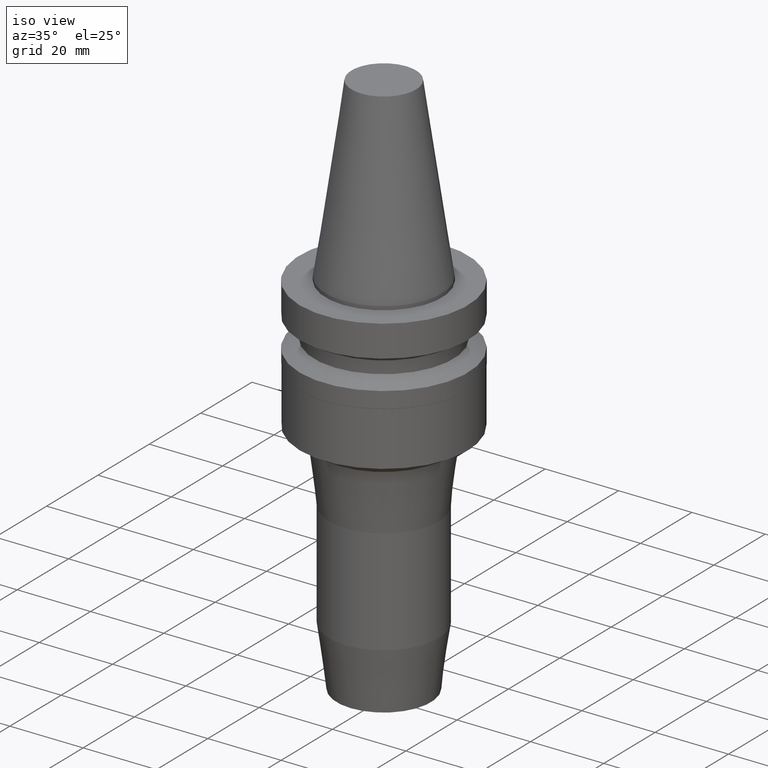
[diagram: clean part render]
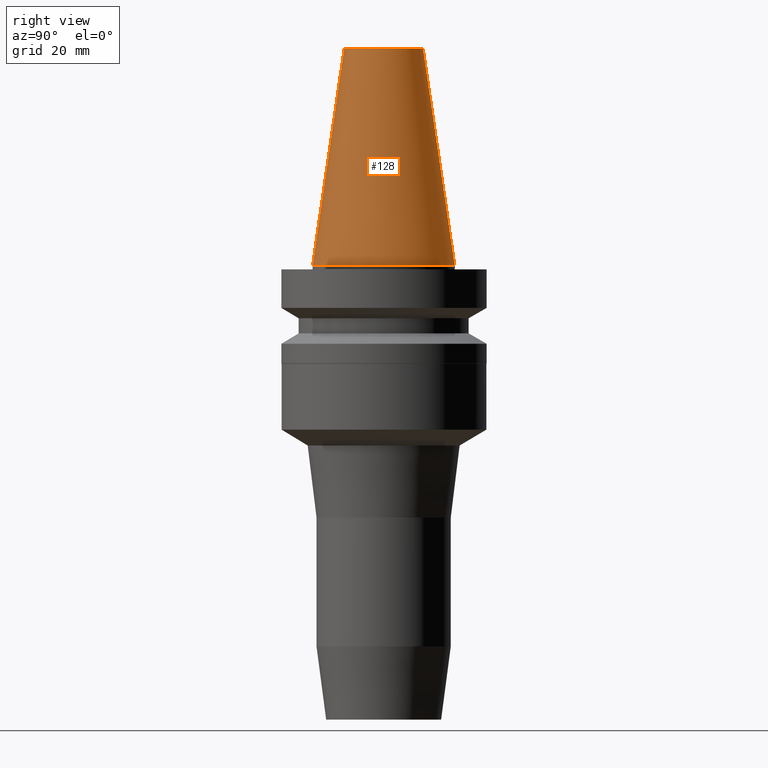
[diagram: tour spotlight — one face highlighted and labeled with its STEP entity id]
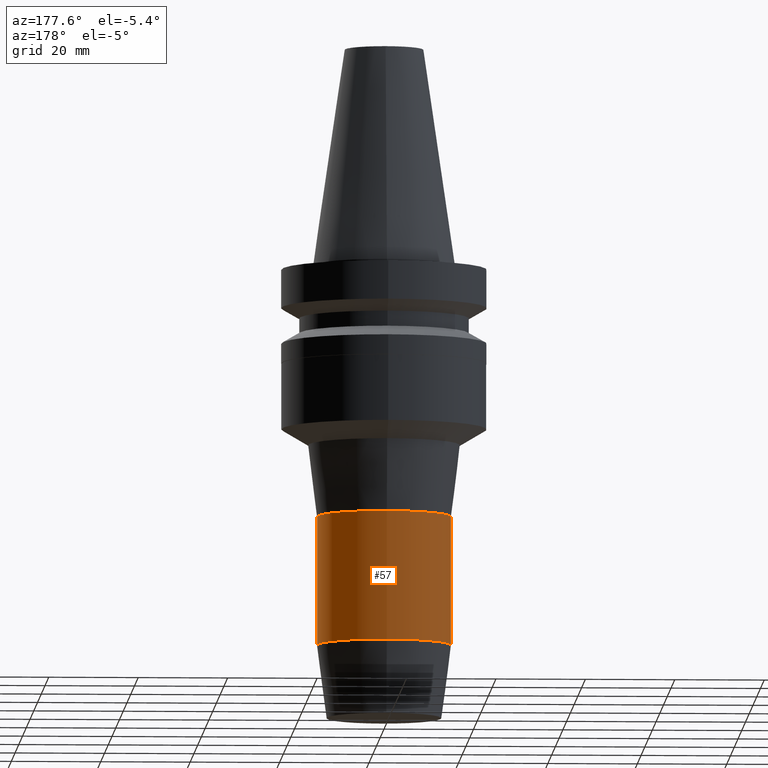
[diagram: tour spotlight — one face highlighted and labeled with its STEP entity id]
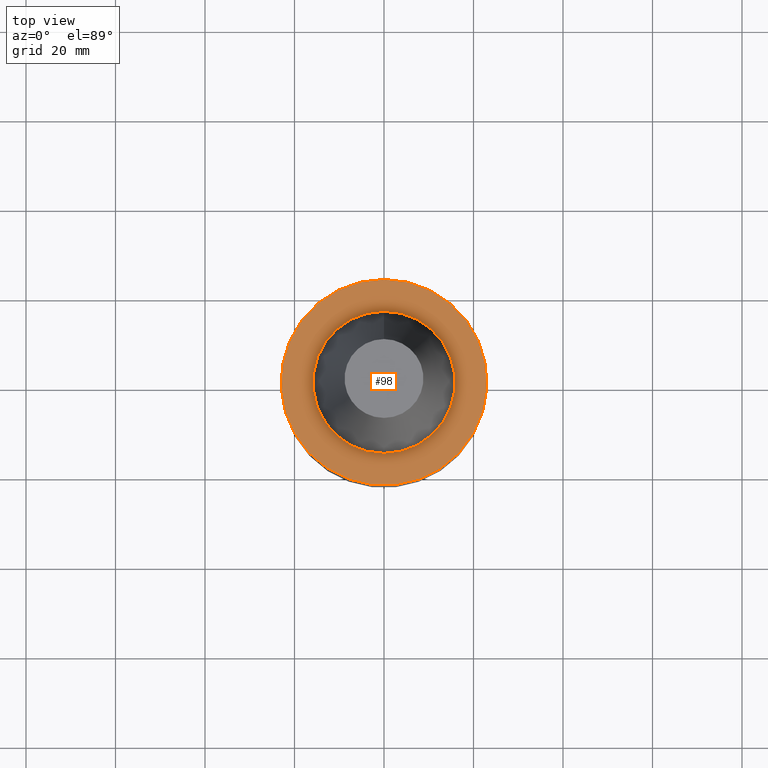
[diagram: tour spotlight — one face highlighted and labeled with its STEP entity id]
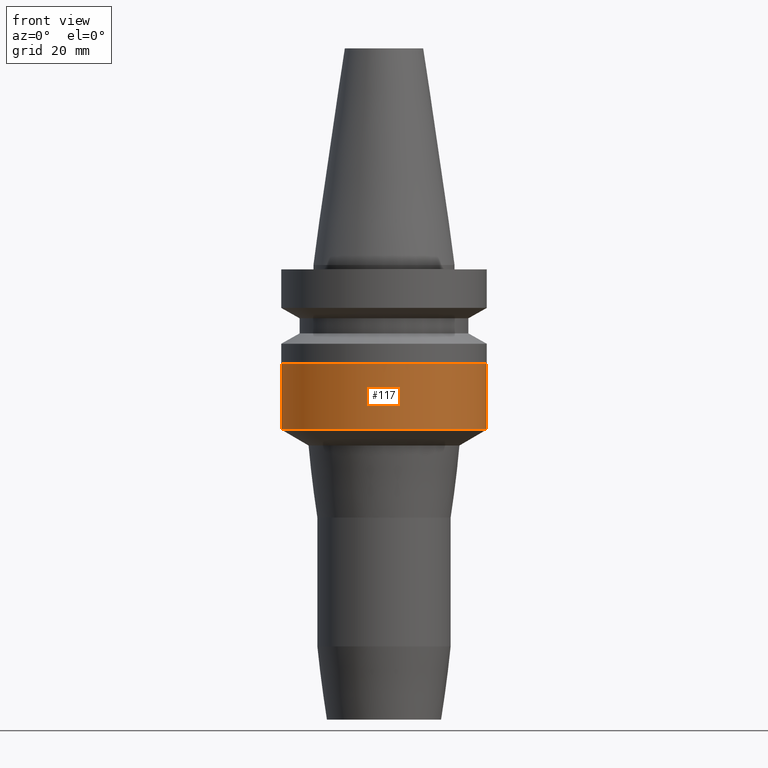
[diagram: tour spotlight — one face highlighted and labeled with its STEP entity id]
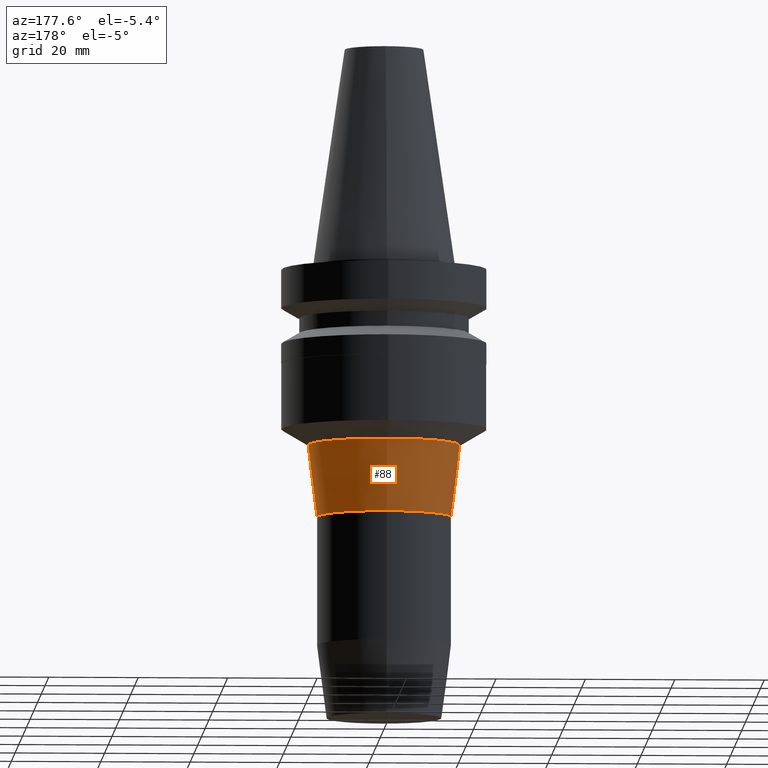
[diagram: tour spotlight — one face highlighted and labeled with its STEP entity id]
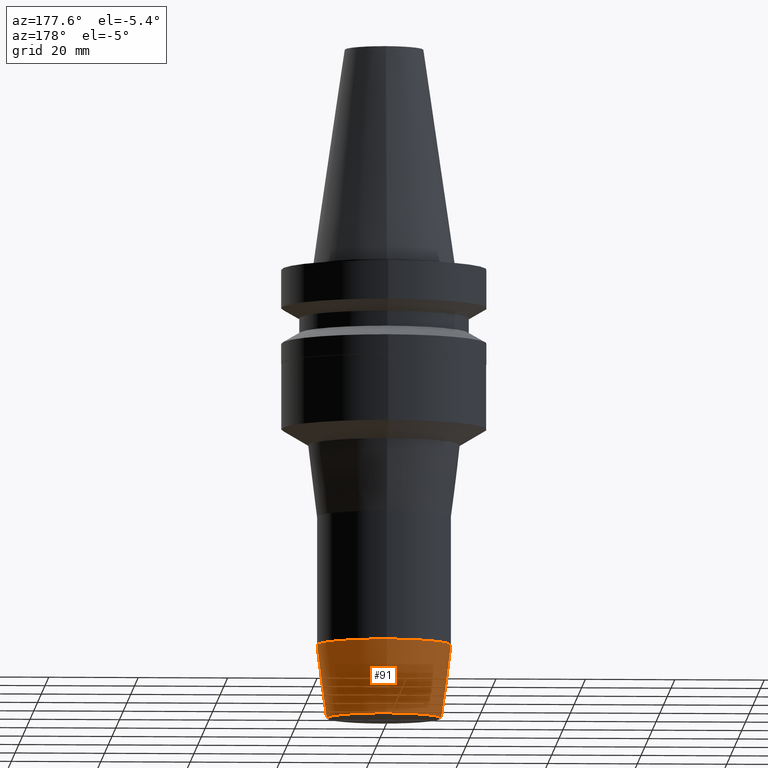
[diagram: tour spotlight — one face highlighted and labeled with its STEP entity id]
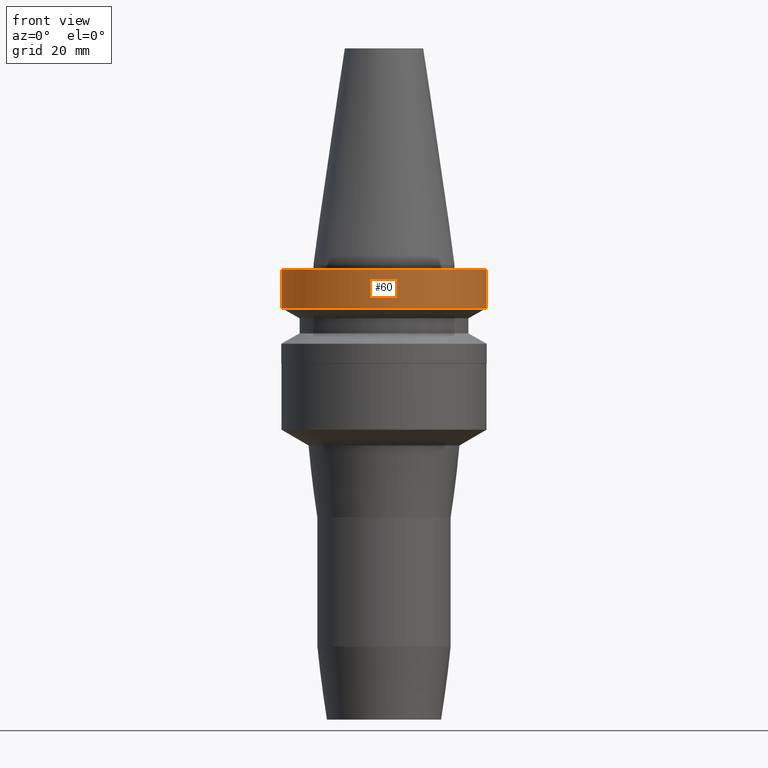
[diagram: tour spotlight — one face highlighted and labeled with its STEP entity id]
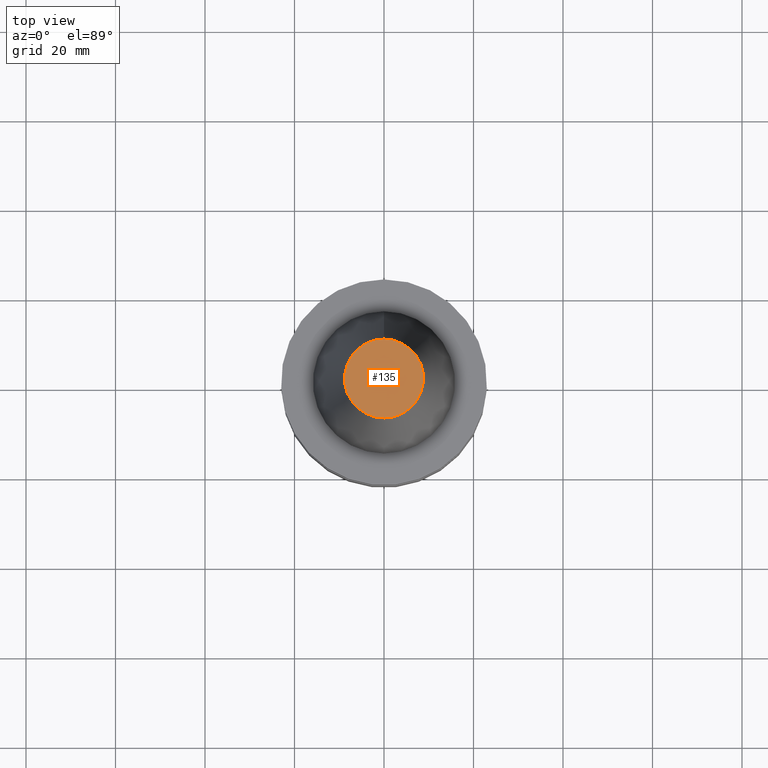
[diagram: tour spotlight — one face highlighted and labeled with its STEP entity id]
A machine part: a face-by-face anatomy tour. The part has 16 B-rep faces; the first image is the clean iso view, then the 8 largest visible faces are spotlighted one at a time (largest first), each with its STEP entity span.

Face 1 — right view, entity #128. In plain terms, the highlighted conical surface has half-angle 8.297 deg.
Definition (entity closure, byte-faithful):
#78=EDGE_CURVE('Unnamed[1]',#188,#188,#189,.T.);
#128=ADVANCED_FACE('Unnamed[1]',(#265,#266),#267,.T.);
#130=EDGE_CURVE('Unnamed[1]',#269,#269,#270,.T.);
#188=VERTEX_POINT('',#329);
#189=CIRCLE('',#330,15.875);
#265=FACE_BOUND('',#425,.T.);
#266=FACE_BOUND('',#426,.T.);
#267=CONICAL_SURFACE('',#427,12.3457500009933,0.144815870013618);
#269=VERTEX_POINT('',#430);
#270=CIRCLE('',#431,8.81650000198669);
#329=CARTESIAN_POINT('',(-1.95674482349743E-031,15.875,1.94412679364642E-015));
#330=AXIS2_PLACEMENT_3D('',#483,#484,#485);
#425=EDGE_LOOP('',(#566));
#426=EDGE_LOOP('',(#567));
#427=AXIS2_PLACEMENT_3D('',#568,#569,#570);
#430=CARTESIAN_POINT('',(-2.96364525393659E-015,8.81650000198669,48.4));
#431=AXIS2_PLACEMENT_3D('',#571,#572,#573);
#483=CARTESIAN_POINT('',(0.0,0.0,0.0));
#484=DIRECTION('',(6.12323399573677E-017,1.22464679914735E-016,-1.0));
#485=DIRECTION('',(-1.23259516440783E-032,1.0,1.22464679914735E-016));
#566=ORIENTED_EDGE('',*,*,#78,.F.);
#567=ORIENTED_EDGE('',*,*,#130,.T.);
#568=CARTESIAN_POINT('',(-1.4818226269683E-015,-2.96364525393659E-015,24.2));
#569=DIRECTION('',(6.12323399573677E-017,1.22464679914735E-016,-1.0));
#570=DIRECTION('',(-1.23259516440783E-032,1.0,1.22464679914735E-016));
#571=CARTESIAN_POINT('',(-2.96364525393659E-015,-5.92729050787319E-015,48.4));
#572=DIRECTION('',(6.12323399573677E-017,1.22464679914735E-016,-1.0));
#573=DIRECTION('',(-1.23259516440783E-032,1.0,1.22464679914735E-016));

Face 2 — auxiliary view, entity #57. In plain terms, the highlighted cylindrical surface (bore or boss wall) has radius 15 mm, axis along (0, 0, -1).
Definition (entity closure, byte-faithful):
#57=ADVANCED_FACE('Unnamed[1]',(#154,#155),#156,.T.);
#82=EDGE_CURVE('Unnamed[1]',#194,#194,#195,.T.);
#107=EDGE_CURVE('Unnamed[1]',#234,#234,#235,.T.);
#154=FACE_BOUND('',#287,.T.);
#155=FACE_BOUND('',#288,.T.);
#156=CYLINDRICAL_SURFACE('',#289,15.0);
#194=VERTEX_POINT('',#337);
#195=CIRCLE('',#338,14.9999999999985);
#234=VERTEX_POINT('',#387);
#235=CIRCLE('',#388,15.0000000000014);
#287=EDGE_LOOP('',(#443));
#288=EDGE_LOOP('',(#444));
#289=AXIS2_PLACEMENT_3D('',#445,#446,#447);
#337=CARTESIAN_POINT('',(5.2190726737866E-015,14.9999999999985,-85.2339250373302));
#338=AXIS2_PLACEMENT_3D('',#489,#490,#491);
#387=CARTESIAN_POINT('',(3.45478985273467E-015,15.0000000000014,-56.4210000000005));
#388=AXIS2_PLACEMENT_3D('',#534,#535,#536);
#443=ORIENTED_EDGE('',*,*,#82,.F.);
#444=ORIENTED_EDGE('',*,*,#107,.T.);
#445=CARTESIAN_POINT('',(4.33693126326063E-015,8.67386252652127E-015,-70.8274625186654));
#446=DIRECTION('',(6.12323399573677E-017,1.22464679914735E-016,-1.0));
#447=DIRECTION('',(-1.23259516440783E-032,1.0,1.22464679914735E-016));
#489=CARTESIAN_POINT('',(5.2190726737866E-015,1.04381453475732E-014,-85.2339250373302));
#490=DIRECTION('',(6.12323399573677E-017,1.22464679914735E-016,-1.0));
#491=DIRECTION('',(-1.23259516440783E-032,1.0,1.22464679914735E-016));
#534=CARTESIAN_POINT('',(3.45478985273467E-015,6.90957970546934E-015,-56.4210000000005));
#535=DIRECTION('',(6.12323399573677E-017,1.22464679914735E-016,-1.0));
#536=DIRECTION('',(-1.23259516440783E-032,1.0,1.22464679914735E-016));

Face 3 — top view, entity #98. In plain terms, the highlighted planar face has unit normal (-0, -0, 1).
Definition (entity closure, byte-faithful):
#95=EDGE_CURVE('Unnamed[1]',#215,#215,#216,.T.);
#98=ADVANCED_FACE('Unnamed[1]',(#219,#220),#221,.T.);
#100=EDGE_CURVE('Unnamed[1]',#223,#223,#224,.T.);
#215=VERTEX_POINT('',#363);
#216=CIRCLE('',#364,23.0);
#219=FACE_OUTER_BOUND('',#368,.T.);
#220=FACE_BOUND('',#369,.T.);
#221=PLANE('',#370);
#223=VERTEX_POINT('',#373);
#224=CIRCLE('',#374,15.875);
#363=CARTESIAN_POINT('',(6.12323399573674E-017,23.0,-0.999999999999997));
#364=AXIS2_PLACEMENT_3D('',#513,#514,#515);
#368=EDGE_LOOP('',(#517));
#369=EDGE_LOOP('',(#518));
#370=AXIS2_PLACEMENT_3D('',#519,#520,#521);
#373=CARTESIAN_POINT('',(6.12323399573675E-017,15.875,-0.999999999999998));
#374=AXIS2_PLACEMENT_3D('',#522,#523,#524);
#513=CARTESIAN_POINT('',(6.12323399573677E-017,1.22464679914735E-016,-1.0));
#514=DIRECTION('',(6.12323399573677E-017,1.22464679914735E-016,-1.0));
#515=DIRECTION('',(-1.23259516440783E-032,1.0,1.22464679914735E-016));
#517=ORIENTED_EDGE('',*,*,#95,.F.);
#518=ORIENTED_EDGE('',*,*,#100,.T.);
#519=CARTESIAN_POINT('',(6.12323399573674E-017,19.4375,-0.999999999999998));
#520=DIRECTION('',(-6.12323399573677E-017,-1.22464679914735E-016,1.0));
#521=DIRECTION('',(1.23259516440783E-032,-1.0,-1.22464679914735E-016));
#522=CARTESIAN_POINT('',(6.12323399573677E-017,1.22464679914735E-016,-1.0));
#523=DIRECTION('',(6.12323399573677E-017,1.22464679914735E-016,-1.0));
#524=DIRECTION('',(-1.23259516440783E-032,1.0,1.22464679914735E-016));

Face 4 — front view, entity #117. In plain terms, the highlighted cylindrical surface (bore or boss wall) has radius 22.95 mm, axis along (0, 0, -1).
Definition (entity closure, byte-faithful):
#76=EDGE_CURVE('Unnamed[1]',#185,#185,#186,.T.);
#102=EDGE_CURVE('Unnamed[1]',#226,#226,#227,.T.);
#117=ADVANCED_FACE('Unnamed[1]',(#249,#250),#251,.T.);
#185=VERTEX_POINT('',#325);
#186=CIRCLE('',#326,22.9499999999998);
#226=VERTEX_POINT('',#377);
#227=CIRCLE('',#378,22.95);
#249=FACE_BOUND('',#406,.T.);
#250=FACE_BOUND('',#407,.T.);
#251=CYLINDRICAL_SURFACE('',#408,22.9499999999999);
#325=CARTESIAN_POINT('',(1.35017309605716E-015,22.9499999999998,-22.0499999999543));
#326=AXIS2_PLACEMENT_3D('',#480,#481,#482);
#377=CARTESIAN_POINT('',(2.25335011043113E-015,22.95,-36.8));
#378=AXIS2_PLACEMENT_3D('',#525,#526,#527);
#406=EDGE_LOOP('',(#550));
#407=EDGE_LOOP('',(#551));
#408=AXIS2_PLACEMENT_3D('',#552,#553,#554);
#480=CARTESIAN_POINT('',(1.35017309605716E-015,2.70034619211431E-015,-22.0499999999543));
#481=DIRECTION('',(6.12323399573677E-017,1.22464679914735E-016,-1.0));
#482=DIRECTION('',(-1.23259516440783E-032,1.0,1.22464679914735E-016));
#525=CARTESIAN_POINT('',(2.25335011043113E-015,4.50670022086226E-015,-36.8));
#526=DIRECTION('',(6.12323399573677E-017,1.22464679914735E-016,-1.0));
#527=DIRECTION('',(-1.23259516440783E-032,1.0,1.22464679914735E-016));
#550=ORIENTED_EDGE('',*,*,#102,.F.);
#551=ORIENTED_EDGE('',*,*,#76,.T.);
#552=CARTESIAN_POINT('',(1.80176160324414E-015,3.60352320648829E-015,-29.4249999999771));
#553=DIRECTION('',(6.12323399573677E-017,1.22464679914735E-016,-1.0));
#554=DIRECTION('',(-1.23259516440783E-032,1.0,1.22464679914735E-016));

Face 5 — auxiliary view, entity #88. In plain terms, the highlighted conical surface has half-angle 7 deg.
Definition (entity closure, byte-faithful):
#88=ADVANCED_FACE('Unnamed[1]',(#203,#204),#205,.T.);
#107=EDGE_CURVE('Unnamed[1]',#234,#234,#235,.T.);
#132=EDGE_CURVE('Unnamed[1]',#272,#272,#273,.T.);
#203=FACE_BOUND('',#348,.T.);
#204=FACE_BOUND('',#349,.T.);
#205=CONICAL_SURFACE('',#350,15.9870273656567,0.122173047639587);
#234=VERTEX_POINT('',#387);
#235=CIRCLE('',#388,15.0000000000014);
#272=VERTEX_POINT('',#434);
#273=CIRCLE('',#435,16.9740547313119);
#348=EDGE_LOOP('',(#499));
#349=EDGE_LOOP('',(#500));
#350=AXIS2_PLACEMENT_3D('',#501,#502,#503);
#387=CARTESIAN_POINT('',(3.45478985273467E-015,15.0000000000014,-56.4210000000005));
#388=AXIS2_PLACEMENT_3D('',#534,#535,#536);
#434=CARTESIAN_POINT('',(2.47033391207569E-015,16.9740547313119,-40.3436144004236));
#435=AXIS2_PLACEMENT_3D('',#574,#575,#576);
#499=ORIENTED_EDGE('',*,*,#107,.F.);
#500=ORIENTED_EDGE('',*,*,#132,.T.);
#501=CARTESIAN_POINT('',(2.96256188240518E-015,5.92512376481036E-015,-48.382307200212));
#502=DIRECTION('',(-6.12323399573677E-017,-1.22464679914735E-016,1.0));
#503=DIRECTION('',(-1.23259516440783E-032,1.0,1.22464679914735E-016));
#534=CARTESIAN_POINT('',(3.45478985273467E-015,6.90957970546934E-015,-56.4210000000005));
#535=DIRECTION('',(6.12323399573677E-017,1.22464679914735E-016,-1.0));
#536=DIRECTION('',(-1.23259516440783E-032,1.0,1.22464679914735E-016));
#574=CARTESIAN_POINT('',(2.47033391207569E-015,4.94066782415138E-015,-40.3436144004236));
#575=DIRECTION('',(6.12323399573677E-017,1.22464679914735E-016,-1.0));
#576=DIRECTION('',(-1.23259516440783E-032,1.0,1.22464679914735E-016));

Face 6 — auxiliary view, entity #91. In plain terms, the highlighted conical surface has half-angle 7.5 deg.
Definition (entity closure, byte-faithful):
#82=EDGE_CURVE('Unnamed[1]',#194,#194,#195,.T.);
#91=ADVANCED_FACE('Unnamed[1]',(#208,#209),#210,.T.);
#114=EDGE_CURVE('Unnamed[1]',#245,#245,#246,.T.);
#194=VERTEX_POINT('',#337);
#195=CIRCLE('',#338,14.9999999999985);
#208=FACE_BOUND('',#354,.T.);
#209=FACE_BOUND('',#355,.T.);
#210=CONICAL_SURFACE('',#356,13.9226826777112,0.130899693901768);
#245=VERTEX_POINT('',#401);
#246=CIRCLE('',#402,12.8453653554239);
#337=CARTESIAN_POINT('',(5.2190726737866E-015,14.9999999999985,-85.2339250373302));
#338=AXIS2_PLACEMENT_3D('',#489,#490,#491);
#354=EDGE_LOOP('',(#505));
#355=EDGE_LOOP('',(#506));
#356=AXIS2_PLACEMENT_3D('',#507,#508,#509);
#401=CARTESIAN_POINT('',(6.22120573966855E-015,12.845365355424,-101.6));
#402=AXIS2_PLACEMENT_3D('',#546,#547,#548);
#489=CARTESIAN_POINT('',(5.2190726737866E-015,1.04381453475732E-014,-85.2339250373302));
#490=DIRECTION('',(6.12323399573677E-017,1.22464679914735E-016,-1.0));
#491=DIRECTION('',(-1.23259516440783E-032,1.0,1.22464679914735E-016));
#505=ORIENTED_EDGE('',*,*,#114,.F.);
#506=ORIENTED_EDGE('',*,*,#82,.T.);
#507=CARTESIAN_POINT('',(5.72013920672758E-015,1.14402784134551E-014,-93.4169625186651));
#508=DIRECTION('',(-6.12323399573677E-017,-1.22464679914735E-016,1.0));
#509=DIRECTION('',(-1.23259516440783E-032,1.0,1.22464679914735E-016));
#546=CARTESIAN_POINT('',(6.22120573966855E-015,1.24424114793371E-014,-101.6));
#547=DIRECTION('',(6.12323399573676E-017,1.22464679914735E-016,-1.0));
#548=DIRECTION('',(-1.23259516440783E-032,1.0,1.22464679914735E-016));

Face 7 — front view, entity #60. In plain terms, the highlighted cylindrical surface (bore or boss wall) has radius 23 mm, axis along (0, 0, -1).
Definition (entity closure, byte-faithful):
#60=ADVANCED_FACE('Unnamed[1]',(#159,#160),#161,.T.);
#95=EDGE_CURVE('Unnamed[1]',#215,#215,#216,.T.);
#119=EDGE_CURVE('Unnamed[1]',#253,#253,#254,.T.);
#159=FACE_BOUND('',#293,.T.);
#160=FACE_BOUND('',#294,.T.);
#161=CYLINDRICAL_SURFACE('',#295,23.0);
#215=VERTEX_POINT('',#363);
#216=CIRCLE('',#364,23.0);
#253=VERTEX_POINT('',#411);
#254=CIRCLE('',#412,23.0);
#293=EDGE_LOOP('',(#449));
#294=EDGE_LOOP('',(#450));
#295=AXIS2_PLACEMENT_3D('',#451,#452,#453);
#363=CARTESIAN_POINT('',(6.12323399573674E-017,23.0,-0.999999999999997));
#364=AXIS2_PLACEMENT_3D('',#513,#514,#515);
#411=CARTESIAN_POINT('',(5.87830463590729E-016,23.0,-9.59999999999999));
#412=AXIS2_PLACEMENT_3D('',#555,#556,#557);
#449=ORIENTED_EDGE('',*,*,#119,.F.);
#450=ORIENTED_EDGE('',*,*,#95,.T.);
#451=CARTESIAN_POINT('',(3.24531401774048E-016,6.49062803548097E-016,-5.3));
#452=DIRECTION('',(6.12323399573677E-017,1.22464679914735E-016,-1.0));
#453=DIRECTION('',(-1.23259516440783E-032,1.0,1.22464679914735E-016));
#513=CARTESIAN_POINT('',(6.12323399573677E-017,1.22464679914735E-016,-1.0));
#514=DIRECTION('',(6.12323399573677E-017,1.22464679914735E-016,-1.0));
#515=DIRECTION('',(-1.23259516440783E-032,1.0,1.22464679914735E-016));
#555=CARTESIAN_POINT('',(5.87830463590729E-016,1.17566092718146E-015,-9.59999999999999));
#556=DIRECTION('',(6.12323399573677E-017,1.22464679914735E-016,-1.0));
#557=DIRECTION('',(-1.23259516440783E-032,1.0,1.22464679914735E-016));

Face 8 — top view, entity #135. In plain terms, the highlighted planar face has unit normal (-0, -0, 1).
Definition (entity closure, byte-faithful):
#130=EDGE_CURVE('Unnamed[1]',#269,#269,#270,.T.);
#135=ADVANCED_FACE('Unnamed[1]',(#276),#277,.T.);
#269=VERTEX_POINT('',#430);
#270=CIRCLE('',#431,8.81650000198669);
#276=FACE_OUTER_BOUND('',#439,.T.);
#277=PLANE('',#440);
#430=CARTESIAN_POINT('',(-2.96364525393659E-015,8.81650000198669,48.4));
#431=AXIS2_PLACEMENT_3D('',#571,#572,#573);
#439=EDGE_LOOP('',(#578));
#440=AXIS2_PLACEMENT_3D('',#579,#580,#581);
#571=CARTESIAN_POINT('',(-2.96364525393659E-015,-5.92729050787319E-015,48.4));
#572=DIRECTION('',(6.12323399573677E-017,1.22464679914735E-016,-1.0));
#573=DIRECTION('',(-1.23259516440783E-032,1.0,1.22464679914735E-016));
#578=ORIENTED_EDGE('',*,*,#130,.F.);
#579=CARTESIAN_POINT('',(-2.96364525393659E-015,4.40825000099334,48.4));
#580=DIRECTION('',(-6.12323399573677E-017,-1.22464679914735E-016,1.0));
#581=DIRECTION('',(1.23259516440783E-032,-1.0,-1.22464679914735E-016));